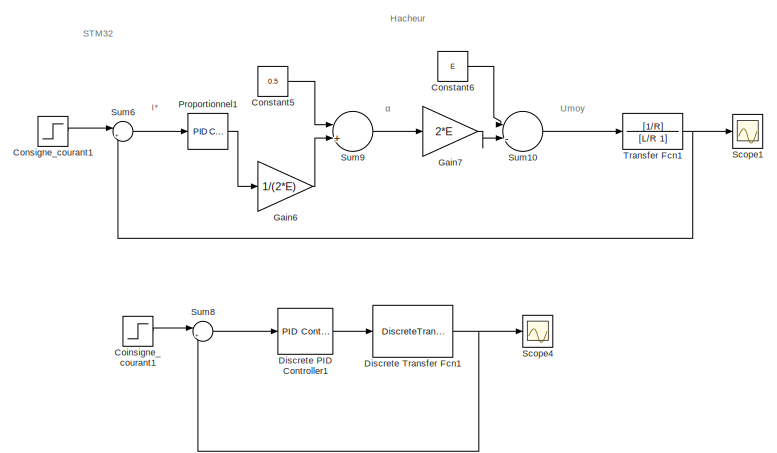
[diagram: root canvas - part 1/2, right side, full height]
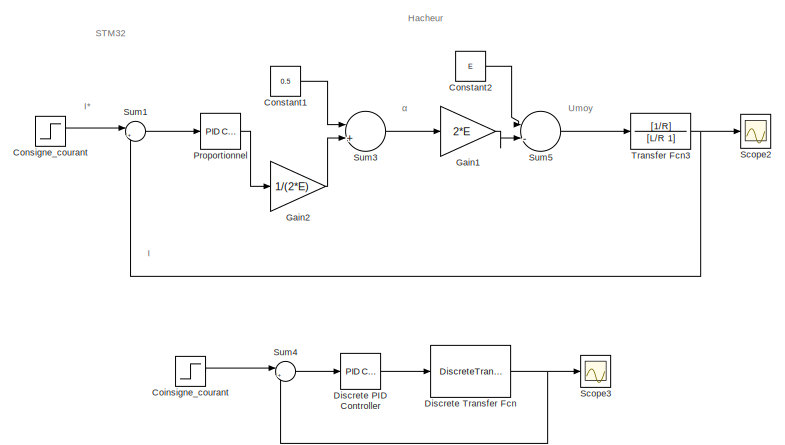
[diagram: root canvas - part 2/2, left side, full height]
MODEL slx_a143bb35455e
KIND model
CONFIG AbsTol = auto
CONFIG FixedStep = auto
CONFIG MaxStep = auto
CONFIG MinStep = auto
CONFIG RelTol = 1e-3
CONFIG SampleTimeConstraint = Unconstrained
CONFIG Solver = VariableStepAuto
CONFIG SolverMode = Auto
CONFIG SolverName = VariableStepAuto
CONFIG StartTime = 0.0
CONFIG StopTime = 1
BLOCK [Step] Coinsigne_courant
  After = 5
  SampleTime = Te
  Time = 0.1
BLOCK [Step] Coinsigne_courant1
  After = 5
  SampleTime = Te
  Time = 0.1
BLOCK [Step] Consigne_courant
  After = 5
  SampleTime = 0
  Time = 0.1
BLOCK [Step] Consigne_courant1
  After = 5
  SampleTime = 0
  Time = 0.1
BLOCK [Constant] Constant1
  Value = 0.5
BLOCK [Constant] Constant2
  Value = E
BLOCK [Constant] Constant5
  Value = 0.5
BLOCK [Constant] Constant6
  Value = E
BLOCK [Reference] Discrete PID Controller  REF=simulink/Continuous/PID Controller
  Ports = [1, 1]
  SourceBlock = simulink/Continuous/PID Controller
  SourceType = PID 1dof
BLOCK [Reference] Discrete PID Controller1  REF=simulink/Continuous/PID Controller
  Ports = [1, 1]
  SourceBlock = simulink/Continuous/PID Controller
  SourceType = PID 1dof
BLOCK [DiscreteTransferFcn] Discrete Transfer Fcn
  Denominator = [1 0.9627]
  InputPortMap = u0
  Numerator = [2.088 2.088]
  Ports = [1, 1]
  SampleTime = Te
BLOCK [DiscreteTransferFcn] Discrete Transfer Fcn1
  Denominator = [1 0.9627]
  InputPortMap = u0
  Numerator = [2.088 2.088]
  Ports = [1, 1]
  SampleTime = Te
BLOCK [Gain] Gain1
  Gain = 2*E
  OutDataTypeStr = Inherit: Inherit via internal rule
  ParamDataTypeStr = Inherit: Inherit via internal rule
  SaturateOnIntegerOverflow = off
BLOCK [Gain] Gain2
  Gain = 1/(2*E)
  OutDataTypeStr = Inherit: Inherit via internal rule
  ParamDataTypeStr = Inherit: Inherit via internal rule
  SaturateOnIntegerOverflow = off
BLOCK [Gain] Gain6
  Gain = 1/(2*E)
  OutDataTypeStr = Inherit: Inherit via internal rule
  ParamDataTypeStr = Inherit: Inherit via internal rule
  SaturateOnIntegerOverflow = off
BLOCK [Gain] Gain7
  Gain = 2*E
  OutDataTypeStr = Inherit: Inherit via internal rule
  ParamDataTypeStr = Inherit: Inherit via internal rule
  SaturateOnIntegerOverflow = off
BLOCK [Reference] Proportionnel  REF=simulink/Continuous/PID Controller
  Ports = [1, 1]
  SourceBlock = simulink/Continuous/PID Controller
  SourceType = PID 1dof
BLOCK [Reference] Proportionnel1  REF=simulink/Continuous/PID Controller
  Ports = [1, 1]
  SourceBlock = simulink/Continuous/PID Controller
  SourceType = PID 1dof
BLOCK [Scope] Scope1
  Ports = [1]
  ScopeSpecificationString = Simulink.scopes.TimeScopeBlockCfg('CurrentConfiguration', extmgr.ConfigurationSet(extmgr.Configuration('Core','General UI',true),extmgr.Configuration('Core','Source UI',true),extmgr.Configuration('Sources','WiredSimulink',true,'DataLoggingVariableName','ScopeData2'),extmgr.Configuration('Visuals','Time Domain',true,'SerializedDisplays',{struct('MinYLimReal','-0.67312','MaxYLimReal','6.05808','YLab...<+1446ch>
BLOCK [Scope] Scope2
  Ports = [1]
  ScopeSpecificationString = Simulink.scopes.TimeScopeBlockCfg('CurrentConfiguration', extmgr.ConfigurationSet(extmgr.Configuration('Core','General UI',true),extmgr.Configuration('Core','Source UI',true),extmgr.Configuration('Sources','WiredSimulink',true,'DataLoggingVariableName','ScopeData3'),extmgr.Configuration('Visuals','Time Domain',true,'SerializedDisplays',{struct('MinYLimReal','-3.50399','MaxYLimReal','31.5359','YLab...<+1732ch>
BLOCK [Scope] Scope3
  Ports = [1]
  ScopeSpecificationString = Simulink.scopes.TimeScopeBlockCfg('CurrentConfiguration', extmgr.ConfigurationSet(extmgr.Configuration('Core','General UI',true),extmgr.Configuration('Core','Source UI',true),extmgr.Configuration('Sources','WiredSimulink',true,'DataLoggingVariableName','ScopeData1','DataLoggingLimitDataPoints',true,'DataLoggingSaveFormat','Array','DataLoggingDecimation','1','DataLoggingDecimateData',true),extmgr.C...<+1593ch>
BLOCK [Scope] Scope4
  Ports = [1]
  ScopeSpecificationString = Simulink.scopes.TimeScopeBlockCfg('CurrentConfiguration', extmgr.ConfigurationSet(extmgr.Configuration('Core','General UI',true),extmgr.Configuration('Core','Source UI',true),extmgr.Configuration('Sources','WiredSimulink',true,'DataLoggingVariableName','ScopeData2','DataLoggingLimitDataPoints',true,'DataLoggingSaveFormat','Array','DataLoggingDecimation','1','DataLoggingDecimateData',true),extmgr.C...<+1560ch>
BLOCK [Sum] Sum1
  IconShape = round
  InputSameDT = off
  Inputs = |+-
  OutDataTypeStr = Inherit: Inherit via internal rule
  Ports = [2, 1]
  SaturateOnIntegerOverflow = off
BLOCK [Sum] Sum10
  IconShape = round
  InputSameDT = off
  Inputs = |-+|
  OutDataTypeStr = Inherit: Inherit via internal rule
  Ports = [2, 1]
  SaturateOnIntegerOverflow = off
BLOCK [Sum] Sum3
  IconShape = round
  InputSameDT = off
  Inputs = |++|
  OutDataTypeStr = Inherit: Inherit via internal rule
  Ports = [2, 1]
  SaturateOnIntegerOverflow = off
BLOCK [Sum] Sum4
  IconShape = round
  InputSameDT = off
  Inputs = |+-
  OutDataTypeStr = Inherit: Inherit via internal rule
  Ports = [2, 1]
  SaturateOnIntegerOverflow = off
BLOCK [Sum] Sum5
  IconShape = round
  InputSameDT = off
  Inputs = |-+|
  OutDataTypeStr = Inherit: Inherit via internal rule
  Ports = [2, 1]
  SaturateOnIntegerOverflow = off
BLOCK [Sum] Sum6
  IconShape = round
  InputSameDT = off
  Inputs = |+-
  OutDataTypeStr = Inherit: Inherit via internal rule
  Ports = [2, 1]
  SaturateOnIntegerOverflow = off
BLOCK [Sum] Sum8
  IconShape = round
  InputSameDT = off
  Inputs = |+-
  OutDataTypeStr = Inherit: Inherit via internal rule
  Ports = [2, 1]
  SaturateOnIntegerOverflow = off
BLOCK [Sum] Sum9
  IconShape = round
  InputSameDT = off
  Inputs = |++|
  OutDataTypeStr = Inherit: Inherit via internal rule
  Ports = [2, 1]
  SaturateOnIntegerOverflow = off
BLOCK [TransferFcn] Transfer Fcn1
  Denominator = [L/R 1]
  Numerator = [1/R]
BLOCK [TransferFcn] Transfer Fcn3
  Denominator = [L/R 1]
  Numerator = [1/R]
ANNOTATION (root): I*
ANNOTATION (root): Umoy
ANNOTATION (root): α
ANNOTATION (root): I
ANNOTATION (root): Hacheur
ANNOTATION (root): STM32
LINE Coinsigne_courant1:1 -> Sum8:1
LINE Coinsigne_courant:1 -> Sum4:1
LINE Consigne_courant1:1 -> Sum6:1
LINE Consigne_courant:1 -> Sum1:1
LINE Constant1:1 -> Sum3:1
LINE Constant2:1 -> Sum5:1
LINE Constant5:1 -> Sum9:1
LINE Constant6:1 -> Sum10:1
LINE Discrete PID Controller1:1 -> Discrete Transfer Fcn1:1
LINE Discrete PID Controller:1 -> Discrete Transfer Fcn:1
NET Discrete Transfer Fcn1:1 -> Scope4:1, Sum8:2
NET Discrete Transfer Fcn:1 -> Scope3:1, Sum4:2
LINE Gain1:1 -> Sum5:2
LINE Gain2:1 -> Sum3:2
LINE Gain6:1 -> Sum9:2
LINE Gain7:1 -> Sum10:2
LINE Proportionnel1:1 -> Gain6:1
LINE Proportionnel:1 -> Gain2:1
LINE Sum10:1 -> Transfer Fcn1:1
LINE Sum1:1 -> Proportionnel:1
LINE Sum3:1 -> Gain1:1
LINE Sum4:1 -> Discrete PID Controller:1
LINE Sum5:1 -> Transfer Fcn3:1
LINE Sum6:1 -> Proportionnel1:1
LINE Sum8:1 -> Discrete PID Controller1:1
LINE Sum9:1 -> Gain7:1
NET Transfer Fcn1:1 -> Scope1:1, Sum6:2
NET Transfer Fcn3:1 -> Scope2:1, Sum1:2
note: NET lines group one-source signal fan-out (src -> all destinations, sorted); 1:1 wires keep LINE
